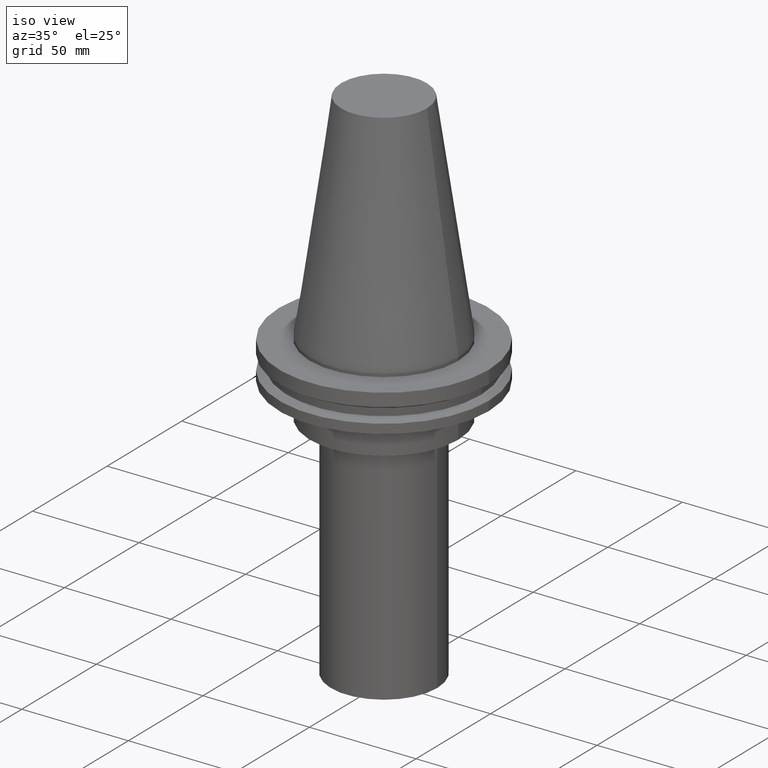
[diagram: clean part render]
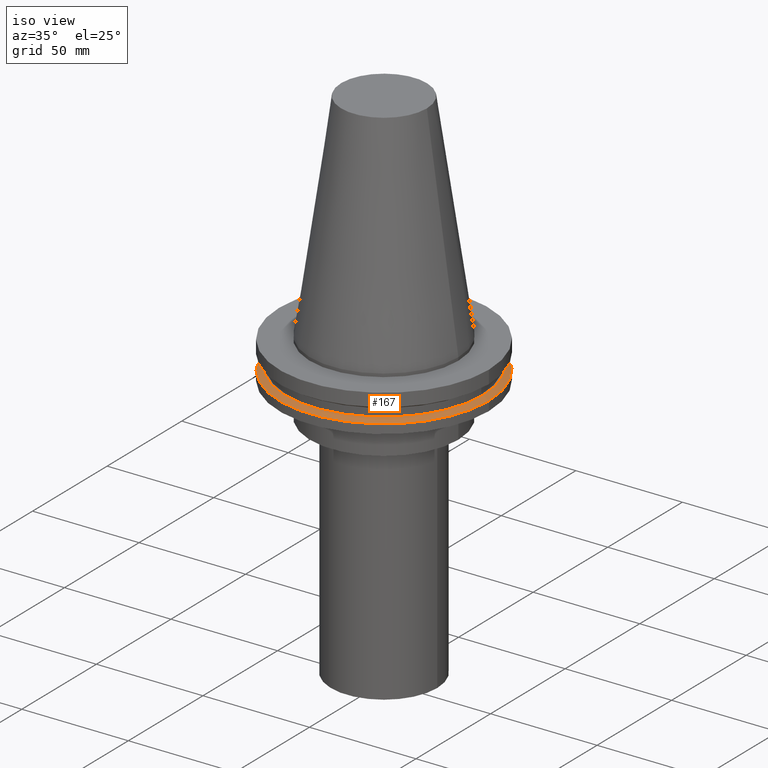
[diagram: same view with one face highlighted and labeled with its STEP entity id]
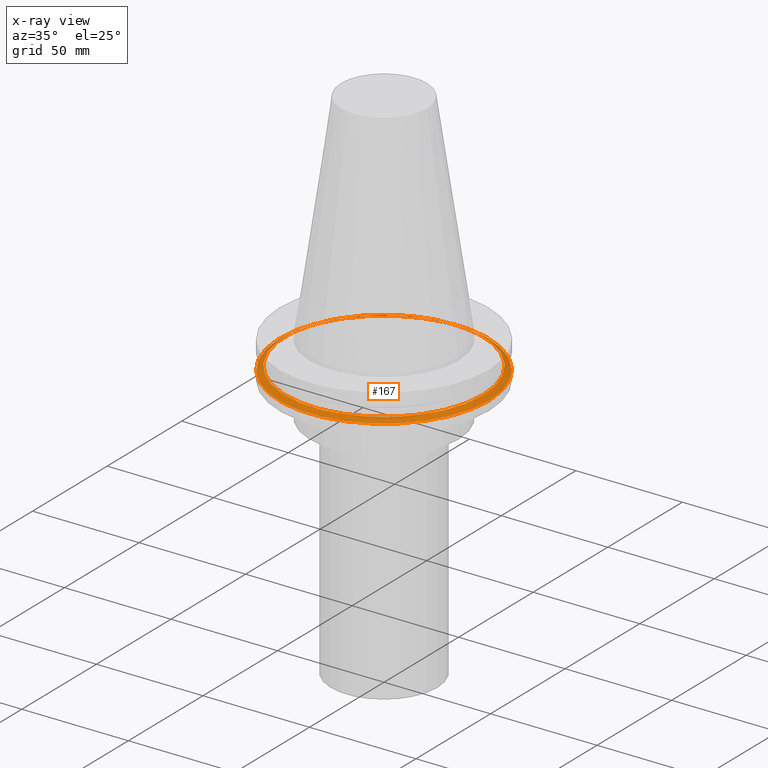
[diagram: x-ray of the same camera — body ghosted, the highlighted face saturated]
A machine part, iso view. The second image highlights one B-rep face of the part: STEP entity #167.
The next image is the same camera in x-ray: the body ghosted, the highlighted face saturated — about 6% of this face is hidden behind the body in this view.
In plain terms, the highlighted conical surface has half-angle 60 deg.
Its self-contained STEP definition (entity closure, byte-faithful):
#7 = EDGE_CURVE ( 'NONE', #302, #302, #285, .T. ) ;
#10 = CARTESIAN_POINT ( 'NONE',  ( 49.21499999999998920, 0.000000000000000000, -14.65761014474876944 ) ) ;
#47 = DIRECTION ( 'NONE',  ( 0.000000000000000000, 0.000000000000000000, -1.000000000000000000 ) ) ;
#58 = CARTESIAN_POINT ( 'NONE',  ( 0.000000000000000000, 0.000000000000000000, -13.05499999999999794 ) ) ;
#80 = FACE_OUTER_BOUND ( 'NONE', #118, .T. ) ;
#87 = AXIS2_PLACEMENT_3D ( 'NONE', #58, #244, #374 ) ;
#118 = EDGE_LOOP ( 'NONE', ( #294 ) ) ;
#167 = ADVANCED_FACE ( 'NONE', ( #290, #80 ), #233, .T. ) ;
#183 = VERTEX_POINT ( 'NONE', #266 ) ;
#186 = DIRECTION ( 'NONE',  ( 1.000000000000000000, 0.000000000000000000, 0.000000000000000000 ) ) ;
#202 = CARTESIAN_POINT ( 'NONE',  ( 0.000000000000000000, 0.000000000000000000, -14.65761014474876944 ) ) ;
#229 = EDGE_LOOP ( 'NONE', ( #321 ) ) ;
#233 = CONICAL_SURFACE ( 'NONE', #318, 49.21499999999998920, 1.047197551196554333 ) ;
#244 = DIRECTION ( 'NONE',  ( -0.000000000000000000, -0.000000000000000000, 1.000000000000000000 ) ) ;
#266 = CARTESIAN_POINT ( 'NONE',  ( 46.43919780457007818, 0.000000000000000000, -13.05499999999999794 ) ) ;
#270 = DIRECTION ( 'NONE',  ( -0.000000000000000000, -0.000000000000000000, 1.000000000000000000 ) ) ;
#285 = CIRCLE ( 'NONE', #315, 49.21499999999998920 ) ;
#290 = FACE_BOUND ( 'NONE', #229, .T. ) ;
#294 = ORIENTED_EDGE ( 'NONE', *, *, #7, .T. ) ;
#302 = VERTEX_POINT ( 'NONE', #10 ) ;
#315 = AXIS2_PLACEMENT_3D ( 'NONE', #202, #270, #186 ) ;
#318 = AXIS2_PLACEMENT_3D ( 'NONE', #320, #47, #324 ) ;
#320 = CARTESIAN_POINT ( 'NONE',  ( 0.000000000000000000, 0.000000000000000000, -14.65761014474876944 ) ) ;
#321 = ORIENTED_EDGE ( 'NONE', *, *, #386, .F. ) ;
#324 = DIRECTION ( 'NONE',  ( -1.000000000000000000, 0.000000000000000000, 0.000000000000000000 ) ) ;
#374 = DIRECTION ( 'NONE',  ( 1.000000000000000000, 0.000000000000000000, 0.000000000000000000 ) ) ;
#386 = EDGE_CURVE ( 'NONE', #183, #183, #391, .T. ) ;
#391 = CIRCLE ( 'NONE', #87, 46.43919780457007818 ) ;